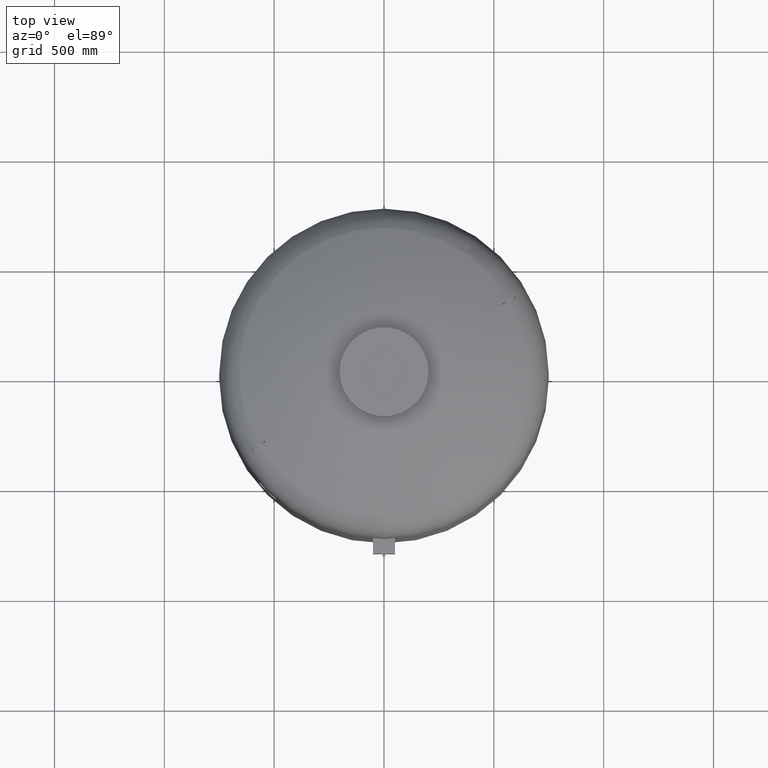
[diagram: clean part render]
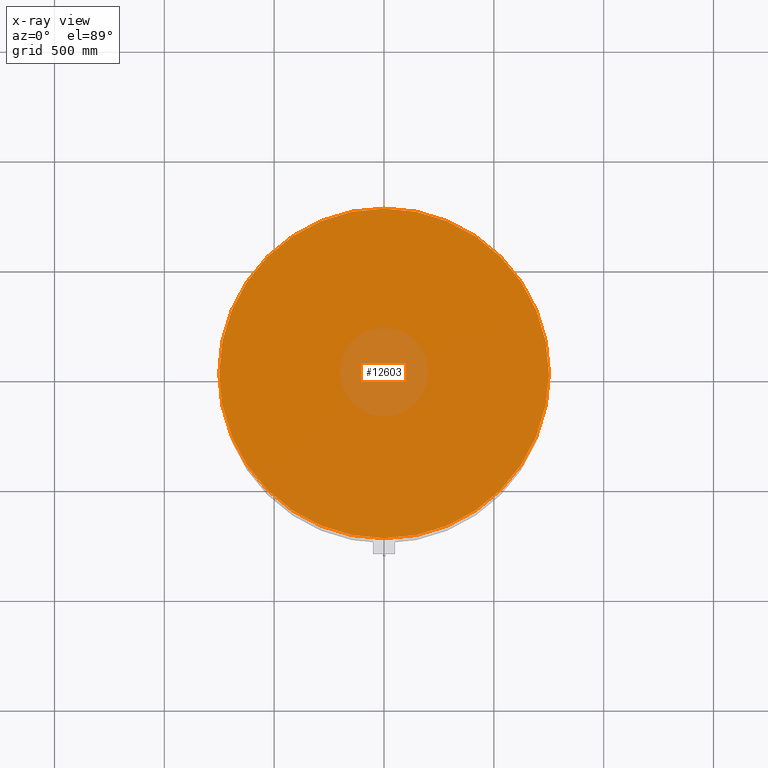
[diagram: x-ray — body ghosted, one internal face saturated and labeled with its STEP entity id]
A machine part, top view, then the same camera in x-ray: the body is ghosted and one INTERNAL B-rep face — a face not visible from any outside direction — is saturated and labeled: STEP entity #12603.
In plain terms, the highlighted planar face has unit normal (0, 0, -1).
Its self-contained STEP definition (entity closure, byte-faithful):
#11862=CARTESIAN_POINT('',(750.0,-6.062002E-014,2096.0));
#11863=VERTEX_POINT('',#11862);
#11872=CARTESIAN_POINT('',(-750.0,3.122546E-014,2096.0));
#11873=VERTEX_POINT('',#11872);
#11874=CARTESIAN_POINT('',(1.631890E-014,-6.062002E-014,2096.0));
#11875=DIRECTION('',(0.0,0.0,-1.0));
#11876=DIRECTION('',(1.0,0.0,0.0));
#11877=AXIS2_PLACEMENT_3D('',#11874,#11875,#11876);
#11878=CIRCLE('',#11877,750.0);
#11879=EDGE_CURVE('',#11873,#11863,#11878,.T.);
#12584=CARTESIAN_POINT('',(1.631890E-014,-6.062002E-014,2096.0));
#12585=DIRECTION('',(0.0,0.0,-1.0));
#12586=DIRECTION('',(1.0,0.0,0.0));
#12587=AXIS2_PLACEMENT_3D('',#12584,#12585,#12586);
#12588=CIRCLE('',#12587,750.0);
#12589=EDGE_CURVE('',#11863,#11873,#12588,.T.);
#12594=CARTESIAN_POINT('',(374.999999999999940,-6.062002E-014,2096.0));
#12595=DIRECTION('',(0.0,0.0,-1.0));
#12596=DIRECTION('',(0.0,-1.0,0.0));
#12597=AXIS2_PLACEMENT_3D('',#12594,#12595,#12596);
#12598=PLANE('',#12597);
#12599=ORIENTED_EDGE('',*,*,#12589,.T.);
#12600=ORIENTED_EDGE('',*,*,#11879,.T.);
#12601=EDGE_LOOP('',(#12599,#12600));
#12602=FACE_OUTER_BOUND('',#12601,.T.);
#12603=ADVANCED_FACE('',(#12602),#12598,.T.);